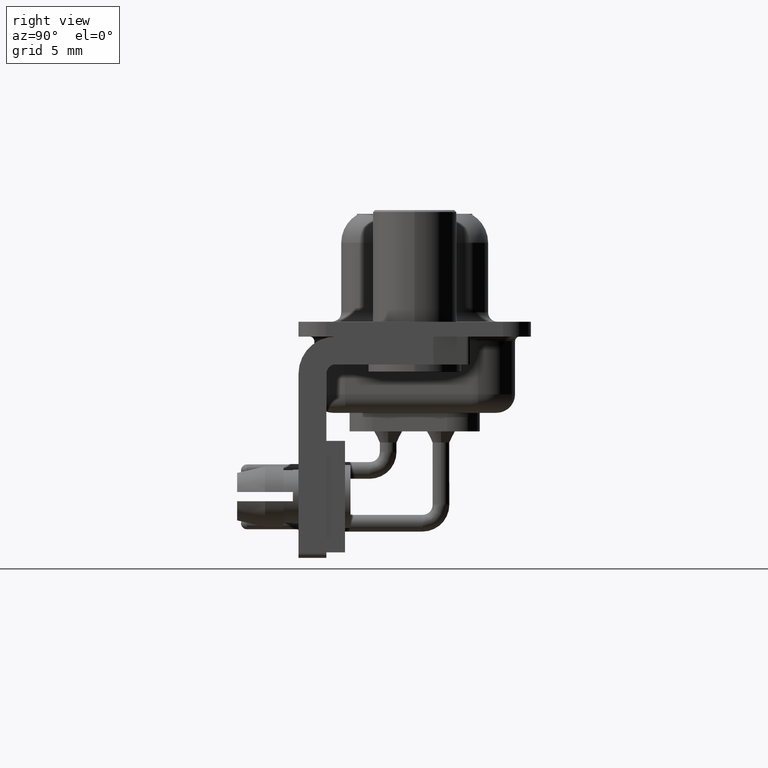
[diagram: clean part render]
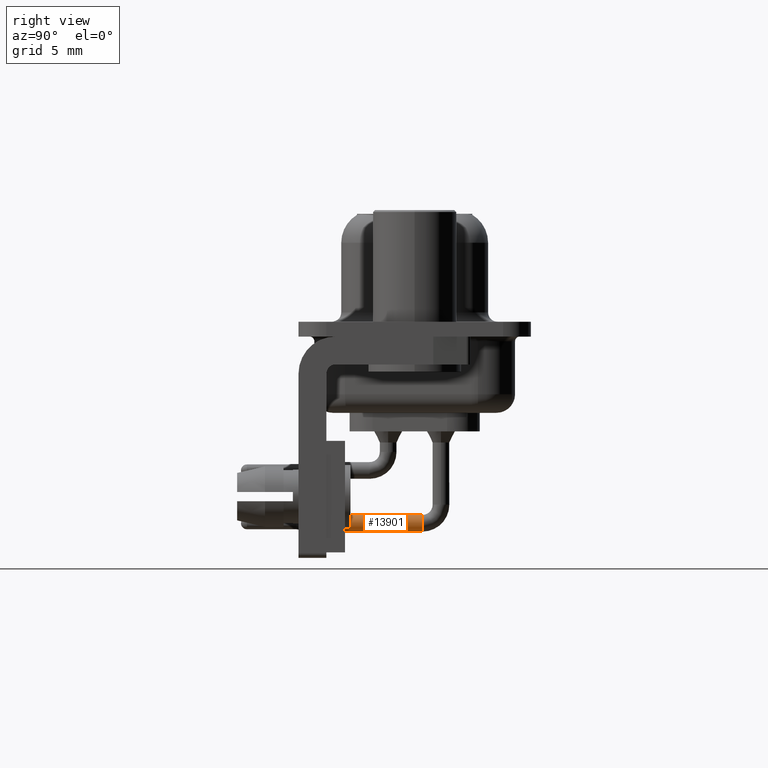
[diagram: same view with one face highlighted and labeled with its STEP entity id]
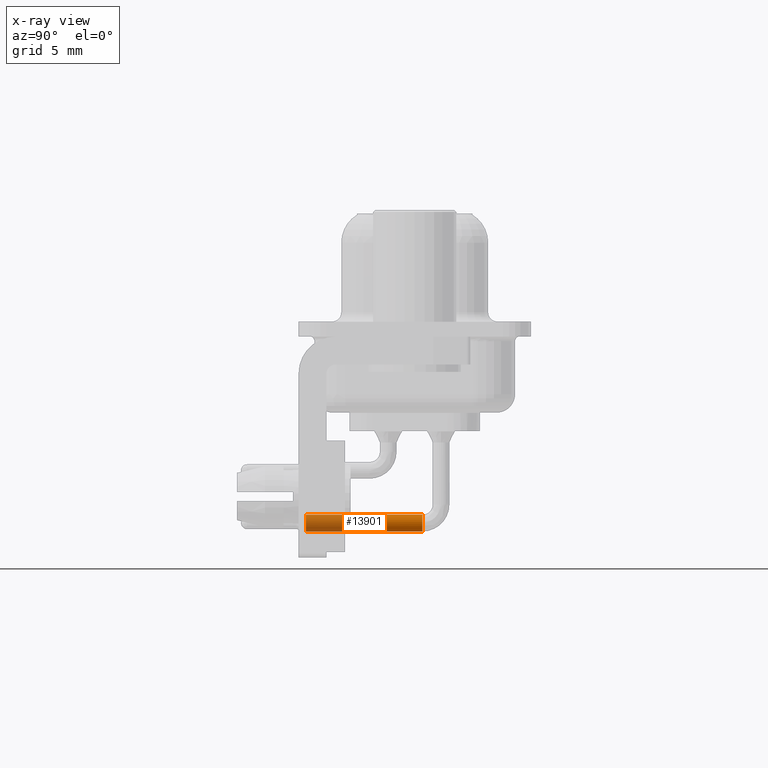
[diagram: x-ray of the same camera — body ghosted, the highlighted face saturated]
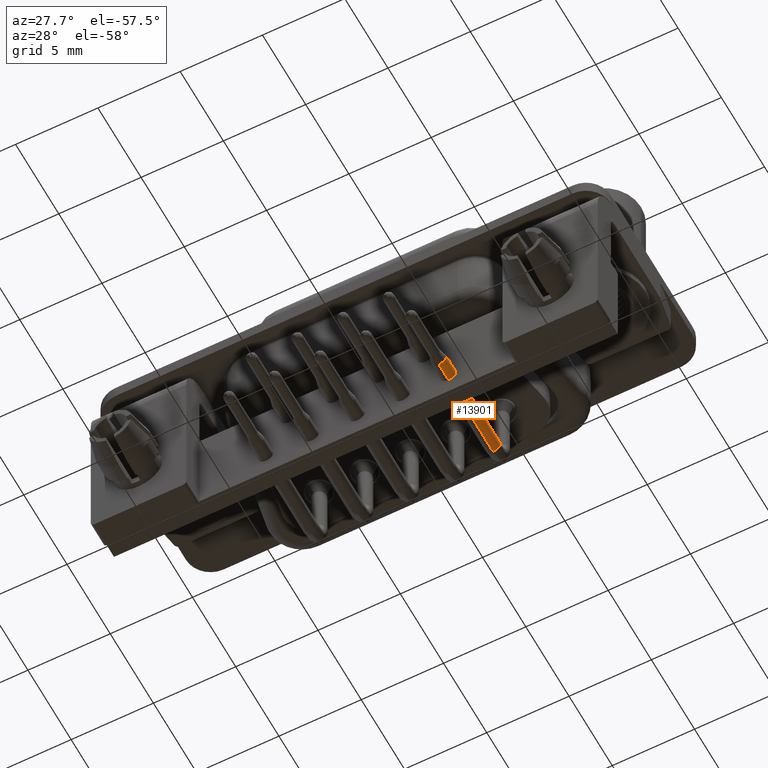
[diagram: same view with one face highlighted and labeled with its STEP entity id]
A machine part, right view. The second image highlights one B-rep face of the part: STEP entity #13901.
The next image is the same camera in x-ray: the body ghosted, the highlighted face saturated — about 37% of this face is hidden behind the body in this view.
A second angle (auxiliary view) of the same face is appended — the face is thin or edge-on in the first view.
In plain terms, the highlighted cylindrical surface (edge-blend (fillet) strip) has radius 0.45 mm, axis along (0, -1, 0).
Its self-contained STEP definition (entity closure, byte-faithful):
#250 = VERTEX_POINT ( 'NONE', #12100 ) ;
#781 = CIRCLE ( 'NONE', #18363, 0.4500000000000007300 ) ;
#928 = VECTOR ( 'NONE', #14357, 1000.000000000000000 ) ;
#1330 = AXIS2_PLACEMENT_3D ( 'NONE', #3752, #14686, #5305 ) ;
#1614 = DIRECTION ( 'NONE',  ( -0.0000000000000000000, -1.000000000000000000, -1.032123937050866300E-013 ) ) ;
#1863 = CARTESIAN_POINT ( 'NONE',  ( 0.0000000000000000000, -1.000000000000005100, -8.589999999999999900 ) ) ;
#2895 = CYLINDRICAL_SURFACE ( 'NONE', #13999, 0.4500000000000007300 ) ;
#3752 = CARTESIAN_POINT ( 'NONE',  ( 0.0000000000000000000, -7.269999999999800600, -8.139999999999998800 ) ) ;
#5305 = DIRECTION ( 'NONE',  ( 0.0000000000000000000, 0.0000000000000000000, -1.000000000000000000 ) ) ;
#5699 = CARTESIAN_POINT ( 'NONE',  ( 0.0000000000000000000, -1.000000000000005100, -8.139999999999998800 ) ) ;
#6001 = VERTEX_POINT ( 'NONE', #16385 ) ;
#6367 = EDGE_CURVE ( 'NONE', #6001, #9268, #14259, .T. ) ;
#7100 = DIRECTION ( 'NONE',  ( -0.0000000000000000000, -1.000000000000000000, -1.032123937050866300E-013 ) ) ;
#7284 = EDGE_CURVE ( 'NONE', #250, #10796, #13987, .T. ) ;
#7551 = FACE_OUTER_BOUND ( 'NONE', #14482, .T. ) ;
#7624 = CARTESIAN_POINT ( 'NONE',  ( 5.510910596163098200E-017, -1.000000000000005100, -7.689999999999998600 ) ) ;
#7742 = CARTESIAN_POINT ( 'NONE',  ( 0.02825573378818874500, -0.9999999999998504500, -8.589112027792722900 ) ) ;
#8210 = EDGE_CURVE ( 'NONE', #11801, #10796, #13085, .T. ) ;
#8808 = CARTESIAN_POINT ( 'NONE',  ( 0.0000000000000000000, -7.269999999999800600, -8.139999999999998800 ) ) ;
#9005 = ORIENTED_EDGE ( 'NONE', *, *, #17915, .F. ) ;
#9169 = DIRECTION ( 'NONE',  ( 0.0000000000000000000, -1.000000000000000000, 0.0000000000000000000 ) ) ;
#9223 = LINE ( 'NONE', #1863, #928 ) ;
#9268 = VERTEX_POINT ( 'NONE', #7742 ) ;
#9776 = CARTESIAN_POINT ( 'NONE',  ( 5.510910596163098200E-017, -7.269999999999800600, -7.689999999999998600 ) ) ;
#10365 = ORIENTED_EDGE ( 'NONE', *, *, #7284, .T. ) ;
#10380 = DIRECTION ( 'NONE',  ( 0.0000000000000000000, 0.0000000000000000000, -1.000000000000000000 ) ) ;
#10690 = ORIENTED_EDGE ( 'NONE', *, *, #15368, .T. ) ;
#10796 = VERTEX_POINT ( 'NONE', #9776 ) ;
#10987 = CARTESIAN_POINT ( 'NONE',  ( 0.0000000000000000000, -0.9999999999998967500, -8.139999999999998800 ) ) ;
#11801 = VERTEX_POINT ( 'NONE', #15827 ) ;
#12100 = CARTESIAN_POINT ( 'NONE',  ( 5.510910596163100600E-017, -0.9999999999999431600, -7.689999999999999500 ) ) ;
#12558 = DIRECTION ( 'NONE',  ( 0.06279051952934029700, 1.031196732941769700E-013, -0.9980267284282698900 ) ) ;
#13085 = CIRCLE ( 'NONE', #1330, 0.4500000000000007300 ) ;
#13137 = ORIENTED_EDGE ( 'NONE', *, *, #14645, .F. ) ;
#13507 = VECTOR ( 'NONE', #9169, 1000.000000000000000 ) ;
#13901 = ADVANCED_FACE ( 'NONE', ( #7551 ), #2895, .T. ) ;
#13987 = LINE ( 'NONE', #7624, #13507 ) ;
#13999 = AXIS2_PLACEMENT_3D ( 'NONE', #5699, #15061, #19815 ) ;
#14259 = CIRCLE ( 'NONE', #20197, 0.4499999999999995700 ) ;
#14357 = DIRECTION ( 'NONE',  ( 0.0000000000000000000, -1.000000000000000000, 0.0000000000000000000 ) ) ;
#14482 = EDGE_LOOP ( 'NONE', ( #14676, #10690, #10365, #16454, #9005, #13137 ) ) ;
#14645 = EDGE_CURVE ( 'NONE', #6001, #15237, #9223, .T. ) ;
#14676 = ORIENTED_EDGE ( 'NONE', *, *, #6367, .T. ) ;
#14686 = DIRECTION ( 'NONE',  ( 0.0000000000000000000, -1.000000000000000000, 0.0000000000000000000 ) ) ;
#15061 = DIRECTION ( 'NONE',  ( 0.0000000000000000000, -1.000000000000000000, 0.0000000000000000000 ) ) ;
#15237 = VERTEX_POINT ( 'NONE', #15994 ) ;
#15368 = EDGE_CURVE ( 'NONE', #9268, #250, #19270, .T. ) ;
#15827 = CARTESIAN_POINT ( 'NONE',  ( 0.4500000000002819000, -7.269999999999800600, -8.139999999999998800 ) ) ;
#15994 = CARTESIAN_POINT ( 'NONE',  ( 0.0000000000000000000, -7.269999999999800600, -8.589999999999999900 ) ) ;
#16385 = CARTESIAN_POINT ( 'NONE',  ( 0.0000000000000000000, -0.9999999999998504500, -8.589999999999999900 ) ) ;
#16448 = CARTESIAN_POINT ( 'NONE',  ( 0.0000000000000000000, -0.9999999999998967500, -8.139999999999998800 ) ) ;
#16454 = ORIENTED_EDGE ( 'NONE', *, *, #8210, .F. ) ;
#17915 = EDGE_CURVE ( 'NONE', #15237, #11801, #781, .T. ) ;
#18024 = DIRECTION ( 'NONE',  ( 0.06279051952930826700, 1.031196732941767800E-013, -0.9980267284282718900 ) ) ;
#18363 = AXIS2_PLACEMENT_3D ( 'NONE', #8808, #19778, #10380 ) ;
#19270 = CIRCLE ( 'NONE', #19414, 0.4500000000000004000 ) ;
#19414 = AXIS2_PLACEMENT_3D ( 'NONE', #16448, #7100, #18024 ) ;
#19778 = DIRECTION ( 'NONE',  ( 0.0000000000000000000, -1.000000000000000000, 0.0000000000000000000 ) ) ;
#19815 = DIRECTION ( 'NONE',  ( 0.0000000000000000000, 0.0000000000000000000, -1.000000000000000000 ) ) ;
#20197 = AXIS2_PLACEMENT_3D ( 'NONE', #10987, #1614, #12558 ) ;